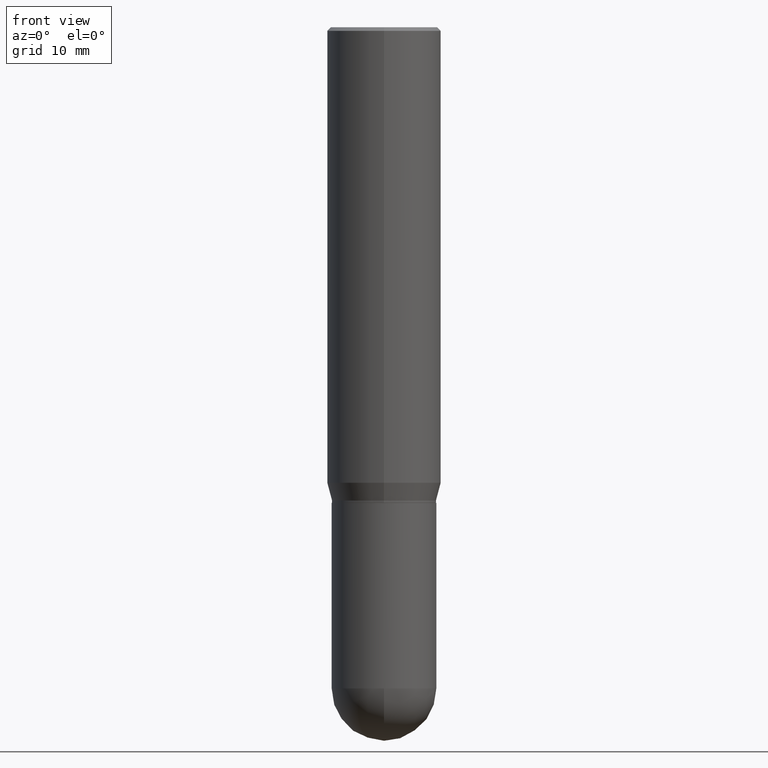
[diagram: clean part render]
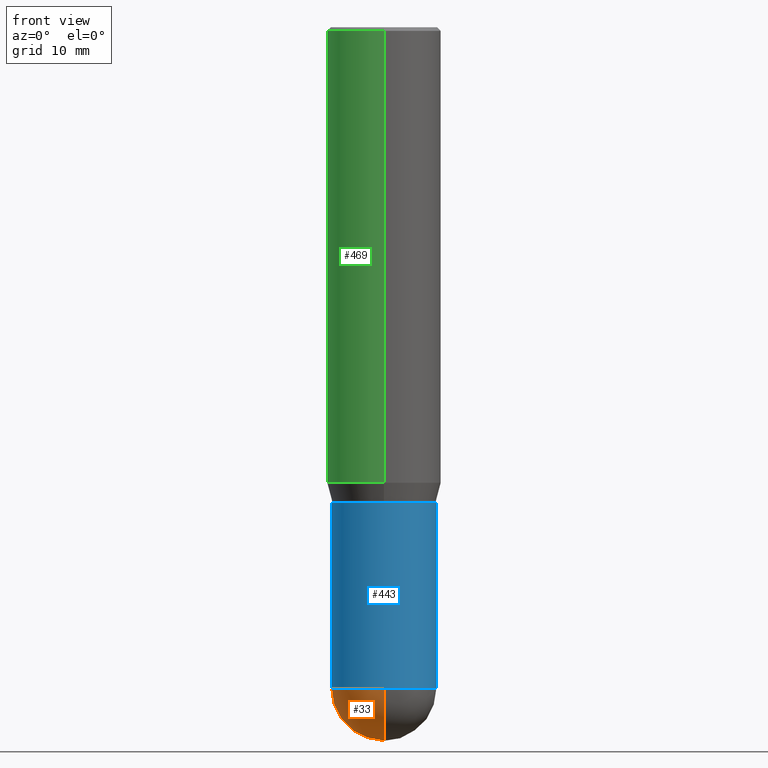
[diagram: same view with three faces highlighted in distinct colors, each labeled with its STEP entity id]
A machine part, front view with three faces highlighted in distinct colors.
Their STEP definitions:

[orange] entity #33 — the highlighted spherical surface has radius 5.5004 mm.
#29 = ORIENTED_EDGE ( 'NONE', *, *, #375, .F. ) ;
#33 = ADVANCED_FACE ( 'NONE', ( #178 ), #63, .T. ) ;
#63 = SPHERICAL_SURFACE ( 'NONE', #383, 0.2165500000000001035 ) ;
#79 = DIRECTION ( 'NONE',  ( -2.445468806185136597E-29, 3.491481338843145583E-15, 1.000000000000000000 ) ) ;
#80 = EDGE_CURVE ( 'NONE', #378, #287, #98, .T. ) ;
#98 = CIRCLE ( 'NONE', #489, 0.2165500000000001035 ) ;
#103 = DIRECTION ( 'NONE',  ( -2.445468806185136597E-29, 3.491481338843145583E-15, 1.000000000000000000 ) ) ;
#113 = DIRECTION ( 'NONE',  ( 6.982962677686265922E-15, 1.000000000000000000, 0.000000000000000000 ) ) ;
#120 = CARTESIAN_POINT ( 'NONE',  ( -0.2165500000000000480, -6.674593120172645055E-15, -2.736249999999999183 ) ) ;
#131 = CIRCLE ( 'NONE', #353, 0.2165500000000001035 ) ;
#154 = CARTESIAN_POINT ( 'NONE',  ( 7.211720977907380015E-29, -1.032290596055380666E-14, -2.952799999999999869 ) ) ;
#163 = CARTESIAN_POINT ( 'NONE',  ( 6.691414020924076964E-29, -9.553565813409554172E-15, -2.736249999999999183 ) ) ;
#173 = CIRCLE ( 'NONE', #459, 0.2165500000000000480 ) ;
#178 = FACE_OUTER_BOUND ( 'NONE', #270, .T. ) ;
#180 = CARTESIAN_POINT ( 'NONE',  ( 6.672895394931898871E-29, -9.580085539845092024E-15, -2.736249999999999627 ) ) ;
#187 = DIRECTION ( 'NONE',  ( -1.000000000000000000, 7.105427357601001070E-15, -4.926315508542082329E-29 ) ) ;
#191 = DIRECTION ( 'NONE',  ( -7.105427357601001070E-15, -1.000000000000000000, 0.000000000000000000 ) ) ;
#198 = DIRECTION ( 'NONE',  ( 1.000000000000000000, -6.982962677686263555E-15, 0.000000000000000000 ) ) ;
#215 = ORIENTED_EDGE ( 'NONE', *, *, #80, .T. ) ;
#220 = DIRECTION ( 'NONE',  ( -1.000000000000000000, 6.982962677686265922E-15, -4.883557194083112340E-29 ) ) ;
#222 = ORIENTED_EDGE ( 'NONE', *, *, #302, .F. ) ;
#235 = CARTESIAN_POINT ( 'NONE',  ( -1.538680294288430240E-15, -0.2165500000000096792, -2.736249999999998295 ) ) ;
#259 = AXIS2_PLACEMENT_3D ( 'NONE', #455, #103, #301 ) ;
#265 = CARTESIAN_POINT ( 'NONE',  ( 1.512160567853028073E-15, 0.2165499999999904723, -2.736249999999999627 ) ) ;
#270 = EDGE_LOOP ( 'NONE', ( #466, #215, #29, #222 ) ) ;
#285 = EDGE_CURVE ( 'NONE', #378, #337, #131, .T. ) ;
#287 = VERTEX_POINT ( 'NONE', #235 ) ;
#301 = DIRECTION ( 'NONE',  ( 1.000000000000000000, -6.982962677686263555E-15, 0.000000000000000000 ) ) ;
#302 = EDGE_CURVE ( 'NONE', #337, #460, #414, .T. ) ;
#337 = VERTEX_POINT ( 'NONE', #265 ) ;
#339 = CARTESIAN_POINT ( 'NONE',  ( 6.672895394931898871E-29, -9.580085539845092024E-15, -2.736249999999999627 ) ) ;
#353 = AXIS2_PLACEMENT_3D ( 'NONE', #416, #491, #113 ) ;
#375 = EDGE_CURVE ( 'NONE', #460, #287, #173, .T. ) ;
#378 = VERTEX_POINT ( 'NONE', #154 ) ;
#381 = DIRECTION ( 'NONE',  ( 6.982962677686265922E-15, 1.000000000000000000, -2.523064413451176940E-15 ) ) ;
#383 = AXIS2_PLACEMENT_3D ( 'NONE', #180, #220, #381 ) ;
#414 = CIRCLE ( 'NONE', #259, 0.2165500000000000480 ) ;
#416 = CARTESIAN_POINT ( 'NONE',  ( 6.672895394931898871E-29, -9.580085539845092024E-15, -2.736249999999999627 ) ) ;
#455 = CARTESIAN_POINT ( 'NONE',  ( 6.691414020924076964E-29, -9.553565813409554172E-15, -2.736249999999999183 ) ) ;
#459 = AXIS2_PLACEMENT_3D ( 'NONE', #163, #79, #198 ) ;
#460 = VERTEX_POINT ( 'NONE', #120 ) ;
#466 = ORIENTED_EDGE ( 'NONE', *, *, #285, .F. ) ;
#489 = AXIS2_PLACEMENT_3D ( 'NONE', #339, #187, #191 ) ;
#491 = DIRECTION ( 'NONE',  ( 1.000000000000000000, -6.982962677686265922E-15, 4.883557194083112340E-29 ) ) ;

[blue] entity #443 — the highlighted cylindrical surface (partial cylindrical patch) has radius 5.5004 mm, axis along (-0, 0, 1).
#31 = VERTEX_POINT ( 'NONE', #449 ) ;
#32 = VECTOR ( 'NONE', #238, 39.37007874015748143 ) ;
#36 = CYLINDRICAL_SURFACE ( 'NONE', #69, 0.2165500000000000480 ) ;
#39 = CARTESIAN_POINT ( 'NONE',  ( 4.813905344975440714E-29, -6.872981015512730918E-15, -1.968499999999999694 ) ) ;
#52 = AXIS2_PLACEMENT_3D ( 'NONE', #169, #217, #327 ) ;
#69 = AXIS2_PLACEMENT_3D ( 'NONE', #468, #363, #278 ) ;
#70 = ORIENTED_EDGE ( 'NONE', *, *, #375, .T. ) ;
#79 = DIRECTION ( 'NONE',  ( -2.445468806185136597E-29, 3.491481338843145583E-15, 1.000000000000000000 ) ) ;
#86 = EDGE_CURVE ( 'NONE', #460, #189, #490, .T. ) ;
#111 = DIRECTION ( 'NONE',  ( -2.445468806185136877E-29, 3.491481338843145188E-15, 1.000000000000000000 ) ) ;
#120 = CARTESIAN_POINT ( 'NONE',  ( -0.2165500000000000480, -6.674593120172645055E-15, -2.736249999999999183 ) ) ;
#146 = LINE ( 'NONE', #453, #151 ) ;
#151 = VECTOR ( 'NONE', #111, 39.37007874015748143 ) ;
#163 = CARTESIAN_POINT ( 'NONE',  ( 6.691414020924076964E-29, -9.553565813409554172E-15, -2.736249999999999183 ) ) ;
#169 = CARTESIAN_POINT ( 'NONE',  ( 6.691414020924076964E-29, -9.553565813409554172E-15, -2.736249999999999183 ) ) ;
#173 = CIRCLE ( 'NONE', #459, 0.2165500000000000480 ) ;
#189 = VERTEX_POINT ( 'NONE', #370 ) ;
#198 = DIRECTION ( 'NONE',  ( 1.000000000000000000, -6.982962677686263555E-15, 0.000000000000000000 ) ) ;
#209 = ORIENTED_EDGE ( 'NONE', *, *, #86, .F. ) ;
#217 = DIRECTION ( 'NONE',  ( -2.445468806185136597E-29, 3.491481338843145583E-15, 1.000000000000000000 ) ) ;
#235 = CARTESIAN_POINT ( 'NONE',  ( -1.538680294288430240E-15, -0.2165500000000096792, -2.736249999999998295 ) ) ;
#238 = DIRECTION ( 'NONE',  ( -2.445468806185136877E-29, 3.491481338843145188E-15, 1.000000000000000000 ) ) ;
#239 = FACE_OUTER_BOUND ( 'NONE', #347, .T. ) ;
#252 = AXIS2_PLACEMENT_3D ( 'NONE', #39, #356, #465 ) ;
#271 = EDGE_CURVE ( 'NONE', #287, #31, #507, .T. ) ;
#278 = DIRECTION ( 'NONE',  ( 1.000000000000000000, -6.982962677686266711E-15, 4.876176775795935793E-29 ) ) ;
#287 = VERTEX_POINT ( 'NONE', #235 ) ;
#327 = DIRECTION ( 'NONE',  ( 1.000000000000000000, -6.982962677686263555E-15, 0.000000000000000000 ) ) ;
#334 = EDGE_CURVE ( 'NONE', #31, #380, #146, .T. ) ;
#347 = EDGE_LOOP ( 'NONE', ( #209, #70, #450, #371, #404 ) ) ;
#350 = CARTESIAN_POINT ( 'NONE',  ( -0.2165500000000000480, 1.538680294288497294E-15, -1.065195393794700063E-29 ) ) ;
#356 = DIRECTION ( 'NONE',  ( -2.445468806185136597E-29, 3.491481338843145583E-15, 1.000000000000000000 ) ) ;
#363 = DIRECTION ( 'NONE',  ( -2.445468806185136597E-29, 3.491481338843145583E-15, 1.000000000000000000 ) ) ;
#370 = CARTESIAN_POINT ( 'NONE',  ( -0.2165500000000000203, -6.674593120172645055E-15, -1.968499999999999694 ) ) ;
#371 = ORIENTED_EDGE ( 'NONE', *, *, #334, .T. ) ;
#375 = EDGE_CURVE ( 'NONE', #460, #287, #173, .T. ) ;
#380 = VERTEX_POINT ( 'NONE', #397 ) ;
#397 = CARTESIAN_POINT ( 'NONE',  ( 0.2165500000000000203, -8.385141583365692530E-15, -1.968499999999999694 ) ) ;
#404 = ORIENTED_EDGE ( 'NONE', *, *, #447, .F. ) ;
#427 = CIRCLE ( 'NONE', #252, 0.2165500000000000203 ) ;
#443 = ADVANCED_FACE ( 'NONE', ( #239 ), #36, .T. ) ;
#447 = EDGE_CURVE ( 'NONE', #189, #380, #427, .T. ) ;
#449 = CARTESIAN_POINT ( 'NONE',  ( 0.2165500000000000480, -9.725433982314102974E-15, -2.736249999999999183 ) ) ;
#450 = ORIENTED_EDGE ( 'NONE', *, *, #271, .T. ) ;
#453 = CARTESIAN_POINT ( 'NONE',  ( 0.2165500000000000480, -1.512160567852961414E-15, 1.055936080798610176E-29 ) ) ;
#459 = AXIS2_PLACEMENT_3D ( 'NONE', #163, #79, #198 ) ;
#460 = VERTEX_POINT ( 'NONE', #120 ) ;
#465 = DIRECTION ( 'NONE',  ( 1.000000000000000000, -6.982962677686264344E-15, 0.000000000000000000 ) ) ;
#468 = CARTESIAN_POINT ( 'NONE',  ( 0.000000000000000000, 0.000000000000000000, 0.000000000000000000 ) ) ;
#490 = LINE ( 'NONE', #350, #32 ) ;
#507 = CIRCLE ( 'NONE', #52, 0.2165500000000000480 ) ;

[green] entity #469 — the highlighted cylindrical surface (partial cylindrical patch) has radius 5.9995 mm, axis along (-0, 0, 1).
#2 = VECTOR ( 'NONE', #206, 39.37007874015748143 ) ;
#9 = VERTEX_POINT ( 'NONE', #294 ) ;
#17 = CARTESIAN_POINT ( 'NONE',  ( 1.678301941865402543E-15, 0.2361999999999934430, -1.885165201631271215 ) ) ;
#20 = AXIS2_PLACEMENT_3D ( 'NONE', #67, #493, #300 ) ;
#44 = EDGE_CURVE ( 'NONE', #237, #9, #458, .T. ) ;
#48 = CARTESIAN_POINT ( 'NONE',  ( 1.678301941865356394E-15, 0.2361999999999999933, -8.246890395256382864E-16 ) ) ;
#64 = VERTEX_POINT ( 'NONE', #17 ) ;
#67 = CARTESIAN_POINT ( 'NONE',  ( 3.668198121540934967E-31, -5.237229294193252052E-17, -0.01499999999999986067 ) ) ;
#68 = LINE ( 'NONE', #355, #366 ) ;
#87 = FACE_OUTER_BOUND ( 'NONE', #348, .T. ) ;
#100 = VERTEX_POINT ( 'NONE', #354 ) ;
#130 = ORIENTED_EDGE ( 'NONE', *, *, #343, .T. ) ;
#133 = CYLINDRICAL_SURFACE ( 'NONE', #360, 0.2361999999999999933 ) ;
#147 = ORIENTED_EDGE ( 'NONE', *, *, #44, .F. ) ;
#188 = EDGE_CURVE ( 'NONE', #64, #237, #440, .T. ) ;
#204 = DIRECTION ( 'NONE',  ( -2.445465414360645907E-29, 3.491486196128866815E-15, 1.000000000000000000 ) ) ;
#206 = DIRECTION ( 'NONE',  ( -2.445465414360645907E-29, 3.491486196128866815E-15, 1.000000000000000000 ) ) ;
#212 = CIRCLE ( 'NONE', #243, 0.2361999999999999933 ) ;
#224 = DIRECTION ( 'NONE',  ( -2.445465414360645907E-29, 3.491486196128866815E-15, 1.000000000000000000 ) ) ;
#237 = VERTEX_POINT ( 'NONE', #260 ) ;
#243 = AXIS2_PLACEMENT_3D ( 'NONE', #464, #509, #321 ) ;
#260 = CARTESIAN_POINT ( 'NONE',  ( 1.678301941865403134E-15, 0.2361999999999999655, -0.01500000000000068466 ) ) ;
#290 = DIRECTION ( 'NONE',  ( -6.982962677686265922E-15, -1.000000000000000000, 3.491486196128866815E-15 ) ) ;
#294 = CARTESIAN_POINT ( 'NONE',  ( -1.649375784469495539E-15, -0.2362000000000000766, -0.01499999999999903667 ) ) ;
#300 = DIRECTION ( 'NONE',  ( -6.982962677686265922E-15, -1.000000000000000000, 3.487819265831411744E-15 ) ) ;
#315 = ORIENTED_EDGE ( 'NONE', *, *, #188, .F. ) ;
#321 = DIRECTION ( 'NONE',  ( -6.982962677686265922E-15, -1.000000000000000000, 3.469747663417777397E-15 ) ) ;
#343 = EDGE_CURVE ( 'NONE', #100, #9, #68, .T. ) ;
#348 = EDGE_LOOP ( 'NONE', ( #315, #487, #130, #147 ) ) ;
#354 = CARTESIAN_POINT ( 'NONE',  ( -1.649375784469449785E-15, -0.2362000000000065436, -1.885165201631269660 ) ) ;
#355 = CARTESIAN_POINT ( 'NONE',  ( -1.649375784469495934E-15, -0.2361999999999999933, 8.246890395256382864E-16 ) ) ;
#360 = AXIS2_PLACEMENT_3D ( 'NONE', #374, #204, #290 ) ;
#366 = VECTOR ( 'NONE', #224, 39.37007874015748143 ) ;
#374 = CARTESIAN_POINT ( 'NONE',  ( 0.000000000000000000, 0.000000000000000000, 0.000000000000000000 ) ) ;
#389 = EDGE_CURVE ( 'NONE', #64, #100, #212, .T. ) ;
#440 = LINE ( 'NONE', #48, #2 ) ;
#458 = CIRCLE ( 'NONE', #20, 0.2361999999999999933 ) ;
#464 = CARTESIAN_POINT ( 'NONE',  ( 4.610106300945484594E-29, -6.582028278918073028E-15, -1.885165201631270548 ) ) ;
#469 = ADVANCED_FACE ( 'NONE', ( #87 ), #133, .T. ) ;
#487 = ORIENTED_EDGE ( 'NONE', *, *, #389, .T. ) ;
#493 = DIRECTION ( 'NONE',  ( -2.445465414360645907E-29, 3.491486196128866815E-15, 1.000000000000000000 ) ) ;
#509 = DIRECTION ( 'NONE',  ( -2.445465414360645907E-29, 3.491486196128866815E-15, 1.000000000000000000 ) ) ;